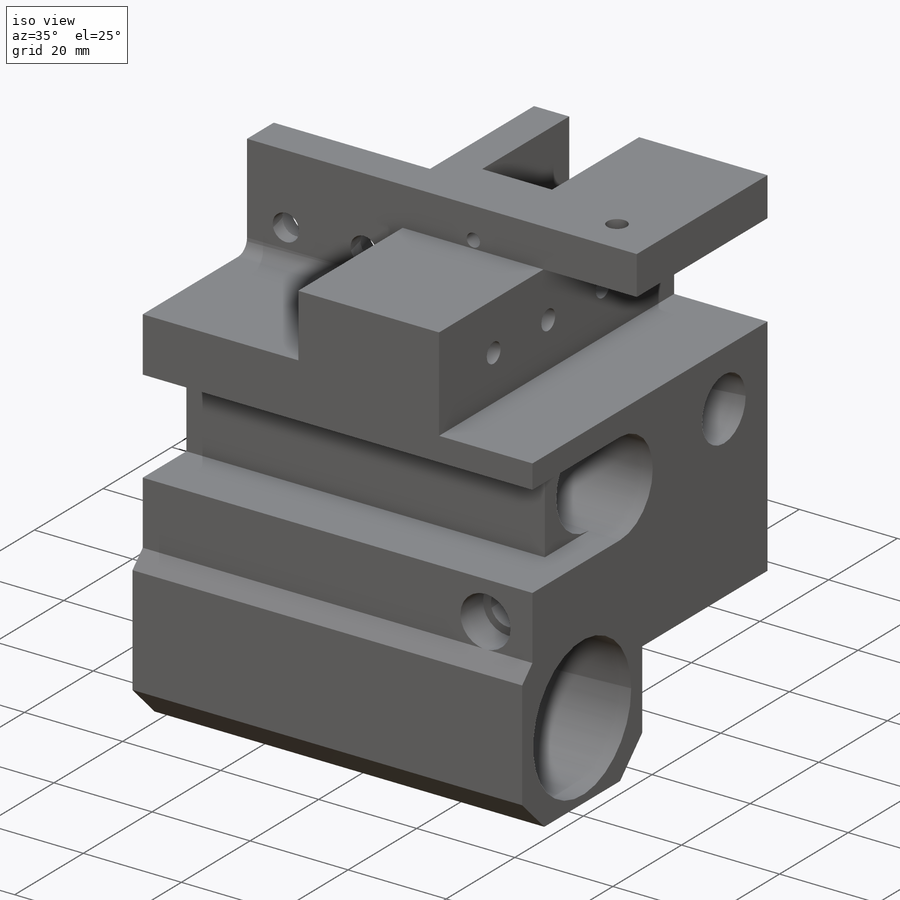
[diagram: iso view]
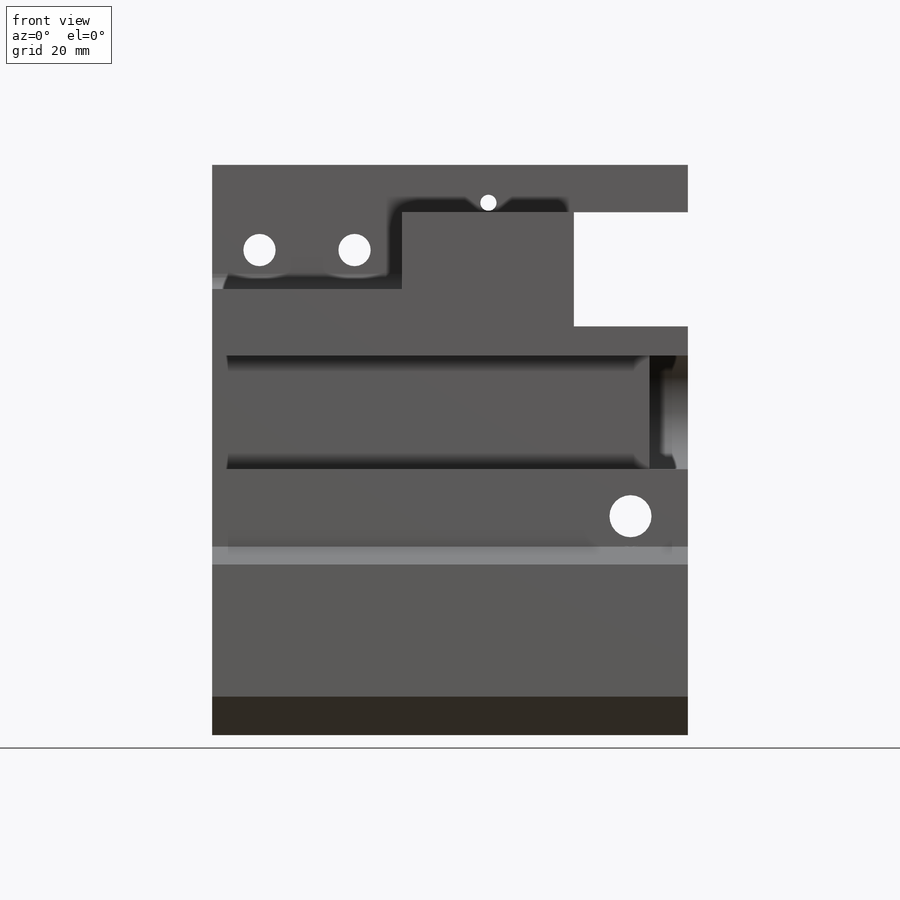
[diagram: front view]
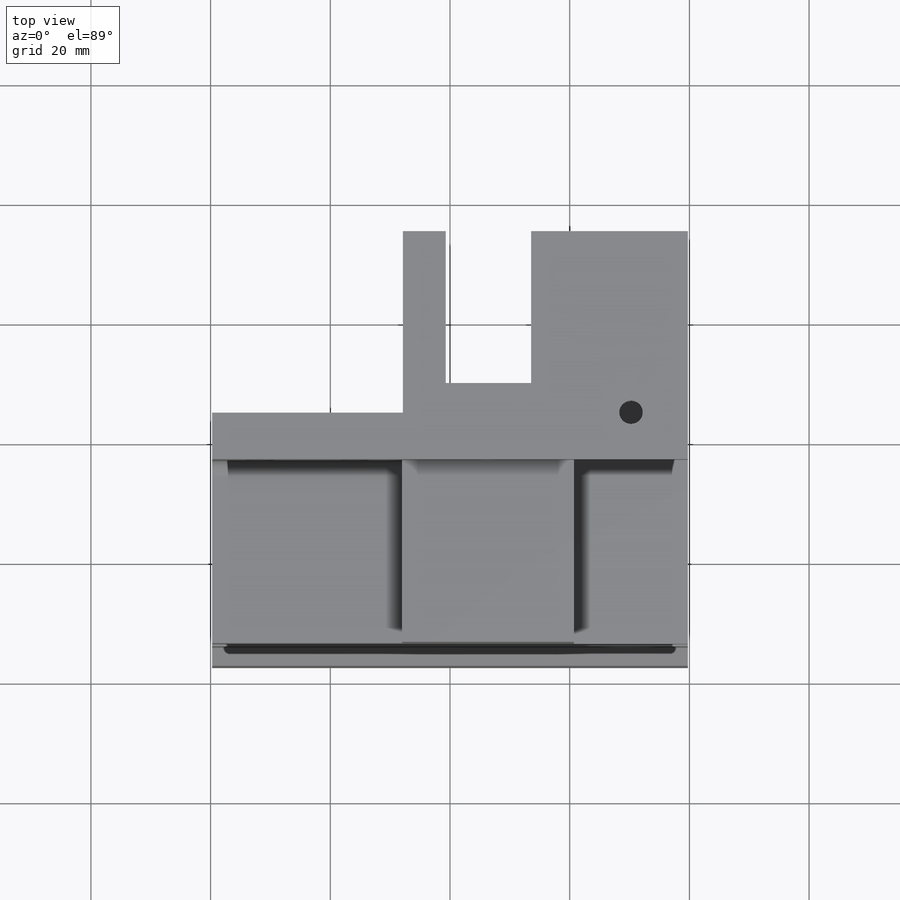
[diagram: top view]
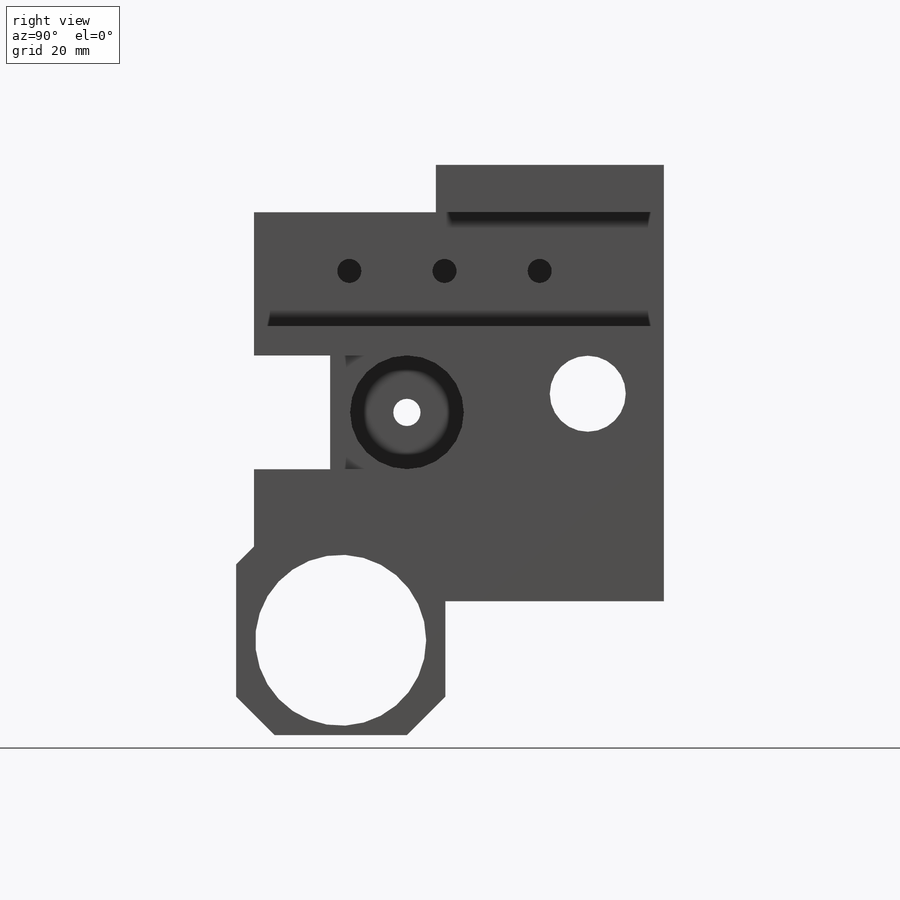
[diagram: right view]
SOLIDWORKS PART (.sldprt)
format: sldprt  version: not decoded by parser v0  size: 576,512 bytes
history: native  units: mm
features: sketch x19, cut_extrude x16, material x1, extrude x1, plane x1 (+16 scaffold rows collapsed)
feature tree (54):
  scaffold x16  (default folders/planes/origin — collapsed)
  material  "1060 Alloy"
  sketch  "Sketch1"  dims[c1.D1=28.56mm c1.D2=1.58mm c1.D3=34.96mm c1.D4=4.74mm c1.D5=44.43mm c1.D6=68.31mm c1.D7=87.37mm c1.D8=7.95mm c1.D9=72.93mm c1.D10=71.48mm c1.D11=95.32mm c2.D8=95.3mm c2.D11=23.94mm c2.D12=38.09mm c2.D13=68.49mm c2.D14=55.76mm c2.D15=~22.076684mm]
  extrude  "Boss-Extrude1"  Depth=39.75mm
  sketch  "Sketch2"  dims[D1=8.1mm D2=60.45mm]
  cut_extrude  "Cut-Extrude1"  [1 undecoded]
  sketch  "Sketch3"  dims[D1=2.54mm D2=11.12mm]
  cut_extrude  "Cut-Extrude2"  Depth=31.75mm
  sketch  "Sketch4"  dims[D1=33.44mm]
  cut_extrude  "Cut-Extrude3"  Depth=6.39mm
  sketch  "Sketch5"
  cut_extrude  "Cut-Extrude4"  Depth=38.16mm
  sketch  "Sketch6"  dims[D1=12.7mm D2=28.33mm D3=6.37mm]
  cut_extrude  "Cut-Extrude5"  [1 undecoded]
  sketch  "Sketch8"  dims[D1=26.2mm D2=~47.63125mm D3=7.17mm D4=46.1mm D5=41.16mm]
  cut_extrude  "Cut-Extrude6"  [1 undecoded]
  sketch  "Sketch9"  dims[D1=19.05mm]
  cut_extrude  "Cut-Extrude7"  Depth=25.4mm
  sketch  "Sketch10"  dims[D1=5.5mm D2=0.01mm D3=3.08mm D4=9.03mm D5=18.69mm]
  plane  "Plane1"  Offset=19.18mm
  sketch  "Sketch11"  dims[D1=~5.342709mm D2=26.07mm D3=38.4mm]
  sketch  "Sketch12"  dims[D1=4.02mm D2=13.915mm]
  cut_extrude  "Cut-Extrude8"  Depth=14.5mm
  sketch  "Sketch13"  dims[D1=5.39mm D3=9.2mm D2=9.64mm D4=3.32mm D5=19.2mm]
  cut_extrude  "Cut-Extrude9"  [1 undecoded]
  sketch  "Sketch14"
  cut_extrude  "Cut-Extrude10"  Depth=4.95mm
  sketch  "Sketch15"  dims[D1=3.95mm D2=7.54mm D3=5.85mm]
  cut_extrude  "Cut-Extrude11"  [1 undecoded]
  sketch  "Sketch16"  dims[D1=12.7mm D2=3.24mm D3=7.87mm]
  cut_extrude  "Cut-Extrude12"  Depth=41.34mm
  sketch  "Sketch17"  dims[D1=7.03mm]
  cut_extrude  "Cut-Extrude13"  [1 undecoded]
  sketch  "Sketch18"  dims[D1=10.22mm]
  cut_extrude  "Cut-Extrude14"  Depth=6.6mm
  sketch  "Sketch19"  dims[D1=2.71mm D2=6.35mm]
  cut_extrude  "Cut-Extrude15"  [1 undecoded]
  sketch  "Sketch21"  dims[D1=4.55mm]
  cut_extrude  "Cut-Extrude16"  [1 undecoded]
decode coverage: 26 of 36 modeling features carry decoded parameters
note: ~ marks probable driven/reference dimensions
note: 8 parameter values undecoded
summary: no parameter record found for 8 features
note: suppression state not decoded; provenance and decode notes live in map.json
